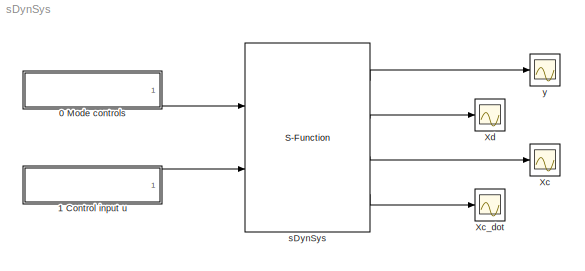
MODEL sDynSys
KIND model
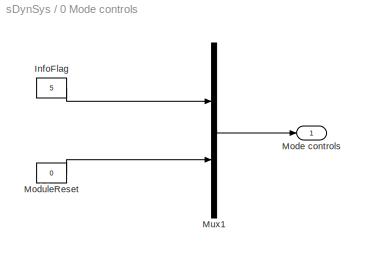
BLOCK [SubSystem] 0 Mode controls
  FunctionWithSeparateData = off
  MaskHideContents = off
  MinAlgLoopOccurrences = off
  Opaque = off
  Ports = [0, 1]
  PropExecContextOutsideSubsystem = off
  RTWSystemCode = Auto
  RequestExecContextInheritance = off
  SID = 1
BLOCK [Constant] 0 Mode controls/InfoFlag
  SID = 2
  Value = 5
BLOCK [Outport] 0 Mode controls/Mode controls
  IconDisplay = Port number
  SID = 8
BLOCK [Constant] 0 Mode controls/ModuleReset
  SID = 3
  Value = 0
BLOCK [Mux] 0 Mode controls/Mux1
  DisplayOption = bar
  Inputs = 2
  Ports = [2, 1]
  SID = 4
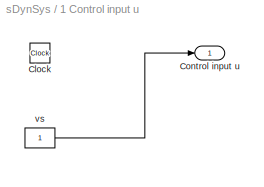
BLOCK [SubSystem] 1 Control input u
  FunctionWithSeparateData = off
  MaskHideContents = off
  MinAlgLoopOccurrences = off
  Opaque = off
  Ports = [0, 1]
  PropExecContextOutsideSubsystem = off
  RTWSystemCode = Auto
  RequestExecContextInheritance = off
  SID = 9
BLOCK [Clock] 1 Control input u/Clock
  SID = 230
BLOCK [Outport] 1 Control input u/Control input u
  IconDisplay = Port number
  SID = 83
BLOCK [Constant] 1 Control input u/vs
  SID = 233
BLOCK [Scope] Xc
  DataFormat = StructureWithTime
  Floating = off
  LimitDataPoints = off
  NumInputPorts = 1
  Ports = [1]
  SID = 220
  SampleTime = 0
  SaveName = xc
  SaveToWorkspace = on
  ShowLegends = off
  TimeRange = 50
  YMax = 50
  YMin = -10
BLOCK [Scope] Xc_dot
  DataFormat = StructureWithTime
  Floating = off
  LimitDataPoints = off
  NumInputPorts = 1
  Ports = [1]
  SID = 231
  SampleTime = 0
  SaveName = xc_dot
  SaveToWorkspace = on
  ShowLegends = off
  TimeRange = 10
  YMax = 500
  YMin = -2500
BLOCK [Scope] Xd
  DataFormat = StructureWithTime
  Floating = off
  LimitDataPoints = off
  NumInputPorts = 1
  Ports = [1]
  SID = 221
  SampleTime = 0
  SaveName = xd
  SaveToWorkspace = on
  ShowLegends = off
  TimeRange = 20
BLOCK [S-Function] sDynSys
  EnableBusSupport = off
  FunctionName = sDynSys_main
  Parameters = SimParam, Fname, Xc0, Xd0
  Ports = [2, 4]
  SID = 217
BLOCK [Scope] y
  DataFormat = StructureWithTime
  Floating = off
  LimitDataPoints = off
  NumInputPorts = 1
  Ports = [1]
  SID = 222
  SampleTime = 0
  SaveName = y
  SaveToWorkspace = on
  ShowLegends = off
  TimeRange = 10
  YMax = 1.5
  YMin = -1.5
LINE 0 Mode controls/InfoFlag:1 -> 0 Mode controls/Mux1:1
LINE 0 Mode controls/ModuleReset:1 -> 0 Mode controls/Mux1:2
LINE 0 Mode controls/Mux1:1 -> 0 Mode controls/Mode controls:1
LINE 0 Mode controls:1 -> sDynSys:1
LINE 1 Control input u/vs:1 -> 1 Control input u/Control input u:1
LINE 1 Control input u:1 -> sDynSys:2
LINE sDynSys:1 -> y:1
LINE sDynSys:2 -> Xd:1
LINE sDynSys:3 -> Xc:1
LINE sDynSys:4 -> Xc_dot:1
